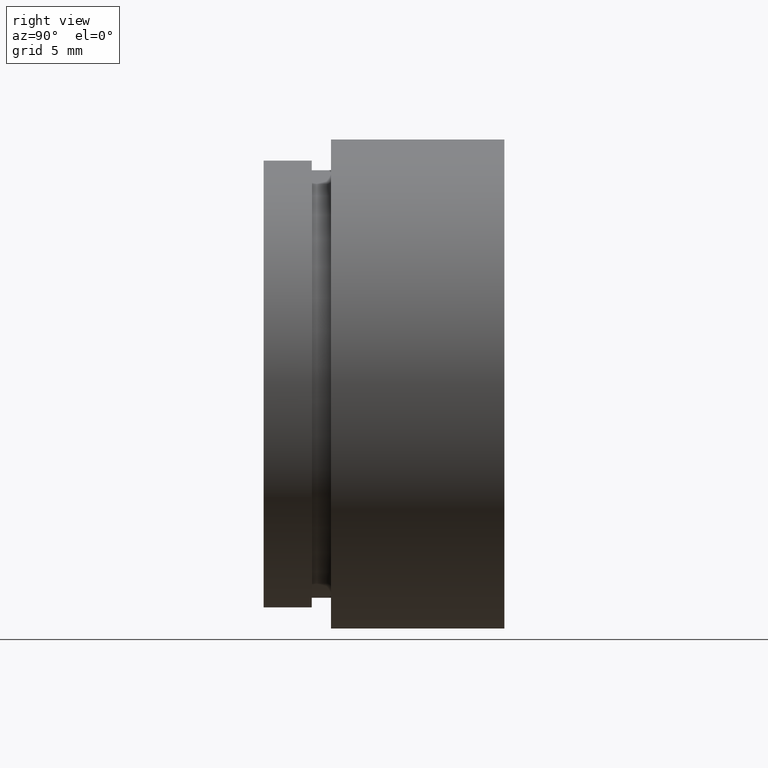
[diagram: clean part render]
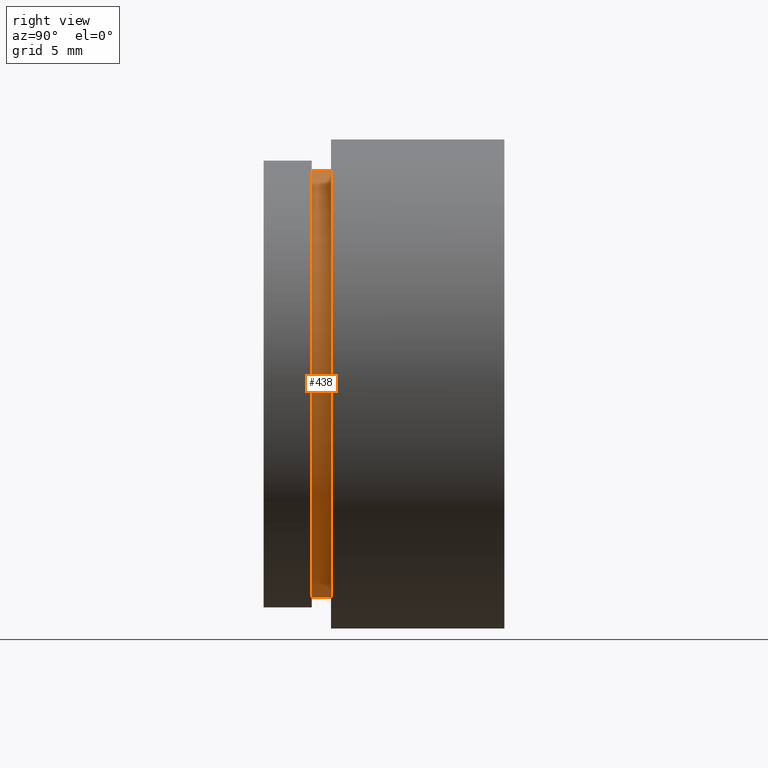
[diagram: same view with one face highlighted and labeled with its STEP entity id]
A machine part, right view. The second image highlights one B-rep face of the part: STEP entity #438.
In plain terms, the highlighted cylindrical surface (partial cylindrical patch) has radius 11.1 mm, axis along (-0, -1, -0).
Its self-contained STEP definition (entity closure, byte-faithful):
#32 = VERTEX_POINT ( 'NONE', #673 ) ;
#37 = AXIS2_PLACEMENT_3D ( 'NONE', #239, #179, #457 ) ;
#47 = EDGE_CURVE ( 'NONE', #388, #32, #93, .T. ) ;
#67 = CARTESIAN_POINT ( 'NONE',  ( 0.0000000000000000000, 0.0000000000000000000, 0.0000000000000000000 ) ) ;
#80 = EDGE_CURVE ( 'NONE', #683, #32, #646, .T. ) ;
#93 = CIRCLE ( 'NONE', #37, 11.10000000000000000 ) ;
#136 = ORIENTED_EDGE ( 'NONE', *, *, #80, .T. ) ;
#179 = DIRECTION ( 'NONE',  ( -0.0000000000000000000, -1.000000000000000000, -0.0000000000000000000 ) ) ;
#181 = ORIENTED_EDGE ( 'NONE', *, *, #713, .T. ) ;
#182 = VERTEX_POINT ( 'NONE', #247 ) ;
#186 = DIRECTION ( 'NONE',  ( -0.0000000000000000000, -1.000000000000000000, -0.0000000000000000000 ) ) ;
#195 = AXIS2_PLACEMENT_3D ( 'NONE', #67, #459, #466 ) ;
#196 = EDGE_CURVE ( 'NONE', #182, #388, #405, .T. ) ;
#209 = ORIENTED_EDGE ( 'NONE', *, *, #196, .F. ) ;
#239 = CARTESIAN_POINT ( 'NONE',  ( 0.0000000000000000000, 2.500000000000000000, 0.0000000000000000000 ) ) ;
#247 = CARTESIAN_POINT ( 'NONE',  ( 0.0000000000000000000, 3.500000000000000000, -11.10000000000000000 ) ) ;
#294 = DIRECTION ( 'NONE',  ( -0.0000000000000000000, -1.000000000000000000, -0.0000000000000000000 ) ) ;
#324 = CIRCLE ( 'NONE', #340, 11.10000000000000000 ) ;
#340 = AXIS2_PLACEMENT_3D ( 'NONE', #423, #537, #492 ) ;
#355 = FACE_OUTER_BOUND ( 'NONE', #609, .T. ) ;
#388 = VERTEX_POINT ( 'NONE', #442 ) ;
#405 = LINE ( 'NONE', #699, #710 ) ;
#423 = CARTESIAN_POINT ( 'NONE',  ( 0.0000000000000000000, 3.500000000000000000, 0.0000000000000000000 ) ) ;
#427 = ORIENTED_EDGE ( 'NONE', *, *, #47, .F. ) ;
#438 = ADVANCED_FACE ( 'NONE', ( #355 ), #657, .T. ) ;
#442 = CARTESIAN_POINT ( 'NONE',  ( 0.0000000000000000000, 2.500000000000000000, -11.10000000000000000 ) ) ;
#457 = DIRECTION ( 'NONE',  ( 0.0000000000000000000, 0.0000000000000000000, -1.000000000000000000 ) ) ;
#459 = DIRECTION ( 'NONE',  ( -0.0000000000000000000, -1.000000000000000000, -0.0000000000000000000 ) ) ;
#466 = DIRECTION ( 'NONE',  ( 0.0000000000000000000, 0.0000000000000000000, -1.000000000000000000 ) ) ;
#492 = DIRECTION ( 'NONE',  ( 0.0000000000000000000, 0.0000000000000000000, -1.000000000000000000 ) ) ;
#537 = DIRECTION ( 'NONE',  ( -0.0000000000000000000, -1.000000000000000000, -0.0000000000000000000 ) ) ;
#595 = CARTESIAN_POINT ( 'NONE',  ( 1.359357947053562200E-015, 3.500000000000000000, 11.10000000000000000 ) ) ;
#609 = EDGE_LOOP ( 'NONE', ( #181, #136, #427, #209 ) ) ;
#622 = CARTESIAN_POINT ( 'NONE',  ( 1.359357947053562200E-015, 0.0000000000000000000, 11.10000000000000000 ) ) ;
#646 = LINE ( 'NONE', #622, #665 ) ;
#657 = CYLINDRICAL_SURFACE ( 'NONE', #195, 11.10000000000000000 ) ;
#665 = VECTOR ( 'NONE', #294, 1000.000000000000000 ) ;
#673 = CARTESIAN_POINT ( 'NONE',  ( 1.359357947053562200E-015, 2.500000000000000000, 11.10000000000000000 ) ) ;
#683 = VERTEX_POINT ( 'NONE', #595 ) ;
#699 = CARTESIAN_POINT ( 'NONE',  ( 0.0000000000000000000, 0.0000000000000000000, -11.10000000000000000 ) ) ;
#710 = VECTOR ( 'NONE', #186, 1000.000000000000000 ) ;
#713 = EDGE_CURVE ( 'NONE', #182, #683, #324, .T. ) ;